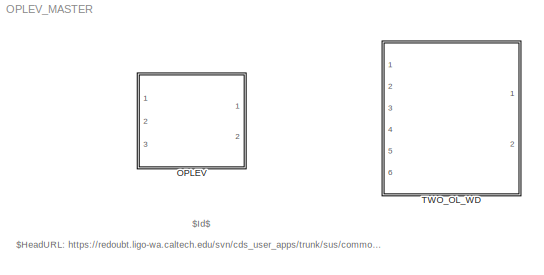
MODEL OPLEV_MASTER
KIND library
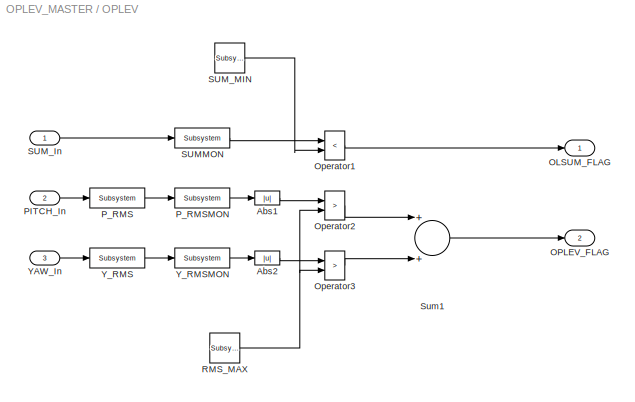
BLOCK [SubSystem] OPLEV
  Ports = [3, 2]
  RequestExecContextInheritance = off
  SID = 1
  Variant = off
BLOCK [Abs] OPLEV/Abs1
  SID = 5
  SaturateOnIntegerOverflow = off
BLOCK [Abs] OPLEV/Abs2
  SID = 6
  SaturateOnIntegerOverflow = off
BLOCK [Outport] OPLEV/OLSUM_FLAG
  IconDisplay = Port number
  SID = 18
BLOCK [Outport] OPLEV/OPLEV_FLAG
  IconDisplay = Port number
  Port = 2
  SID = 19
BLOCK [RelationalOperator] OPLEV/Operator1
  InputSameDT = off
  Operator = <
  OutDataTypeStr = boolean
  Ports = [2, 1]
  SID = 7
BLOCK [RelationalOperator] OPLEV/Operator2
  InputSameDT = off
  Operator = >
  OutDataTypeStr = boolean
  Ports = [2, 1]
  SID = 8
  ZeroCross = off
BLOCK [RelationalOperator] OPLEV/Operator3
  InputSameDT = off
  Operator = >
  OutDataTypeStr = boolean
  Ports = [2, 1]
  SID = 9
BLOCK [Inport] OPLEV/PITCH_In
  IconDisplay = Port number
  Port = 2
  SID = 3
BLOCK [Reference] OPLEV/P_RMS  REF=cdsRms/Subsystem
  AttributesFormatString = %<Tag>
  Description = Purpose:                                   \nCalculate an RMS based on the input signal.
  Ports = [1, 1]
  SID = 10
  SourceBlock = cdsRms/Subsystem
  SourceType = SubSystem
  Tag = cdsRms
BLOCK [Reference] OPLEV/P_RMSMON  REF=cdsEpicsOut/Subsystem
  AttributesFormatString = %<Tag>
  Description = Purpose:                                          \nOutput a FE signal to an EPICS channel.           \n                                                  \nOperation:                                        \nTakes input value and passes it to EPICS record.  \n                                                  \nUsage:                                            \nName the part with the desired EPICS...<+14ch>  <repeated x9 — deduplicated; at blocks: P_RMSMON, SUMMON, Y_RMSMON, H_RMSMON, V_RMSMON>
  Ports = [1, 1]
  SID = 11
  SourceBlock = cdsEpicsOut/Subsystem
  SourceType = SubSystem
  Tag = cdsEpicsOutput
BLOCK [Reference] OPLEV/RMS_MAX  REF=cdsEpicsIn/Subsystem
  AttributesFormatString = %<Tag>
  Description = Purpose:                                                                              \nCreate an EPICS input channel connection to the FE realtime controls.                 \n                                                                                      \nOperation:                                                                            \nOutputs value from an EPICS ai record. Value is ...<+266ch>  <repeated x6 — deduplicated; at blocks: RMS_MAX, SUM_MIN>
  Ports = [0, 1]
  SID = 12
  SourceBlock = cdsEpicsIn/Subsystem
  SourceType = SubSystem
  Tag = cdsEpicsIn
BLOCK [Reference] OPLEV/SUMMON  REF=cdsEpicsOut/Subsystem
  AttributesFormatString = %<Tag>
  Ports = [1, 1]
  SID = 13
  SourceBlock = cdsEpicsOut/Subsystem
  SourceType = SubSystem
  Tag = cdsEpicsOutput
BLOCK [Inport] OPLEV/SUM_In
  IconDisplay = Port number
  SID = 2
BLOCK [Reference] OPLEV/SUM_MIN  REF=cdsEpicsIn/Subsystem
  AttributesFormatString = %<Tag>
  Ports = [0, 1]
  SID = 14
  SourceBlock = cdsEpicsIn/Subsystem
  SourceType = SubSystem
  Tag = cdsEpicsIn
BLOCK [Sum] OPLEV/Sum1
  InputSameDT = off
  OutDataTypeStr = Inherit: Inherit via internal rule
  Ports = [2, 1]
  SID = 15
  SaturateOnIntegerOverflow = off
BLOCK [Inport] OPLEV/YAW_In
  IconDisplay = Port number
  Port = 3
  SID = 4
BLOCK [Reference] OPLEV/Y_RMS  REF=cdsRms/Subsystem
  AttributesFormatString = %<Tag>
  Description = Purpose:                                   \nCalculate an RMS based on the input signal.
  Ports = [1, 1]
  SID = 16
  SourceBlock = cdsRms/Subsystem
  SourceType = SubSystem
  Tag = cdsRms
BLOCK [Reference] OPLEV/Y_RMSMON  REF=cdsEpicsOut/Subsystem
  AttributesFormatString = %<Tag>
  Ports = [1, 1]
  SID = 17
  SourceBlock = cdsEpicsOut/Subsystem
  SourceType = SubSystem
  Tag = cdsEpicsOutput
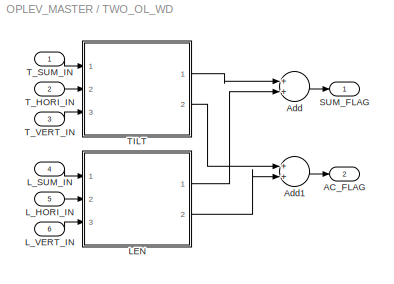
BLOCK [SubSystem] TWO_OL_WD
  Ports = [6, 2]
  RequestExecContextInheritance = off
  SID = 83
  Variant = off
BLOCK [Outport] TWO_OL_WD/AC_FLAG
  IconDisplay = Port number
  Port = 2
  SID = 91
BLOCK [Sum] TWO_OL_WD/Add
  InputSameDT = off
  OutDataTypeStr = Inherit: Inherit via internal rule
  Ports = [2, 1]
  SID = 81
  SaturateOnIntegerOverflow = off
BLOCK [Sum] TWO_OL_WD/Add1
  InputSameDT = off
  OutDataTypeStr = Inherit: Inherit via internal rule
  Ports = [2, 1]
  SID = 82
  SaturateOnIntegerOverflow = off
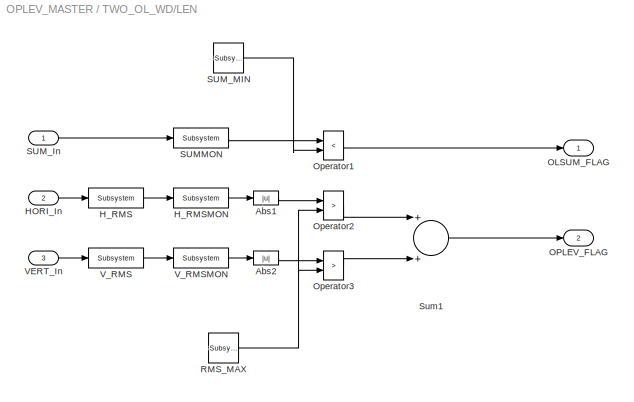
BLOCK [SubSystem] TWO_OL_WD/LEN
  Ports = [3, 2]
  RequestExecContextInheritance = off
  SID = 62
  Variant = off
BLOCK [Abs] TWO_OL_WD/LEN/Abs1
  SID = 66
  SaturateOnIntegerOverflow = off
BLOCK [Abs] TWO_OL_WD/LEN/Abs2
  SID = 67
  SaturateOnIntegerOverflow = off
BLOCK [Inport] TWO_OL_WD/LEN/HORI_In
  IconDisplay = Port number
  Port = 2
  SID = 64
BLOCK [Reference] TWO_OL_WD/LEN/H_RMS  REF=cdsRms/Subsystem
  AttributesFormatString = %<Tag>
  Description = Purpose:                                   \nCalculate an RMS based on the input signal.
  Ports = [1, 1]
  SID = 68
  SourceBlock = cdsRms/Subsystem
  SourceType = SubSystem
  Tag = cdsRms
BLOCK [Reference] TWO_OL_WD/LEN/H_RMSMON  REF=cdsEpicsOut/Subsystem
  AttributesFormatString = %<Tag>
  Ports = [1, 1]
  SID = 69
  SourceBlock = cdsEpicsOut/Subsystem
  SourceType = SubSystem
  Tag = cdsEpicsOutput
BLOCK [Outport] TWO_OL_WD/LEN/OLSUM_FLAG
  IconDisplay = Port number
  SID = 79
BLOCK [Outport] TWO_OL_WD/LEN/OPLEV_FLAG
  IconDisplay = Port number
  Port = 2
  SID = 80
BLOCK [RelationalOperator] TWO_OL_WD/LEN/Operator1
  InputSameDT = off
  Operator = <
  OutDataTypeStr = boolean
  Ports = [2, 1]
  SID = 70
BLOCK [RelationalOperator] TWO_OL_WD/LEN/Operator2
  InputSameDT = off
  Operator = >
  OutDataTypeStr = boolean
  Ports = [2, 1]
  SID = 71
  ZeroCross = off
BLOCK [RelationalOperator] TWO_OL_WD/LEN/Operator3
  InputSameDT = off
  Operator = >
  OutDataTypeStr = boolean
  Ports = [2, 1]
  SID = 72
BLOCK [Reference] TWO_OL_WD/LEN/RMS_MAX  REF=cdsEpicsIn/Subsystem
  AttributesFormatString = %<Tag>
  Ports = [0, 1]
  SID = 73
  SourceBlock = cdsEpicsIn/Subsystem
  SourceType = SubSystem
  Tag = cdsEpicsIn
BLOCK [Reference] TWO_OL_WD/LEN/SUMMON  REF=cdsEpicsOut/Subsystem
  AttributesFormatString = %<Tag>
  Ports = [1, 1]
  SID = 74
  SourceBlock = cdsEpicsOut/Subsystem
  SourceType = SubSystem
  Tag = cdsEpicsOutput
BLOCK [Inport] TWO_OL_WD/LEN/SUM_In
  IconDisplay = Port number
  SID = 63
BLOCK [Reference] TWO_OL_WD/LEN/SUM_MIN  REF=cdsEpicsIn/Subsystem
  AttributesFormatString = %<Tag>
  Ports = [0, 1]
  SID = 75
  SourceBlock = cdsEpicsIn/Subsystem
  SourceType = SubSystem
  Tag = cdsEpicsIn
BLOCK [Sum] TWO_OL_WD/LEN/Sum1
  InputSameDT = off
  OutDataTypeStr = Inherit: Inherit via internal rule
  Ports = [2, 1]
  SID = 76
  SaturateOnIntegerOverflow = off
BLOCK [Inport] TWO_OL_WD/LEN/VERT_In
  IconDisplay = Port number
  Port = 3
  SID = 65
BLOCK [Reference] TWO_OL_WD/LEN/V_RMS  REF=cdsRms/Subsystem
  AttributesFormatString = %<Tag>
  Description = Purpose:                                   \nCalculate an RMS based on the input signal.
  Ports = [1, 1]
  SID = 77
  SourceBlock = cdsRms/Subsystem
  SourceType = SubSystem
  Tag = cdsRms
BLOCK [Reference] TWO_OL_WD/LEN/V_RMSMON  REF=cdsEpicsOut/Subsystem
  AttributesFormatString = %<Tag>
  Ports = [1, 1]
  SID = 78
  SourceBlock = cdsEpicsOut/Subsystem
  SourceType = SubSystem
  Tag = cdsEpicsOutput
BLOCK [Inport] TWO_OL_WD/L_HORI_IN
  IconDisplay = Port number
  Port = 5
  SID = 88
BLOCK [Inport] TWO_OL_WD/L_SUM_IN
  IconDisplay = Port number
  Port = 4
  SID = 87
BLOCK [Inport] TWO_OL_WD/L_VERT_IN
  IconDisplay = Port number
  Port = 6
  SID = 89
BLOCK [Outport] TWO_OL_WD/SUM_FLAG
  IconDisplay = Port number
  SID = 90
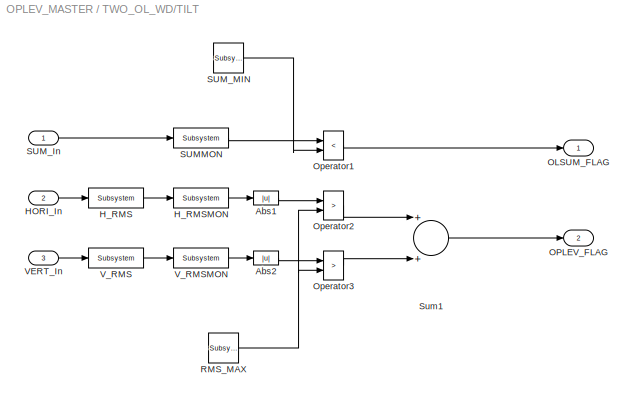
BLOCK [SubSystem] TWO_OL_WD/TILT
  Ports = [3, 2]
  RequestExecContextInheritance = off
  SID = 41
  Variant = off
BLOCK [Abs] TWO_OL_WD/TILT/Abs1
  SID = 45
  SaturateOnIntegerOverflow = off
BLOCK [Abs] TWO_OL_WD/TILT/Abs2
  SID = 46
  SaturateOnIntegerOverflow = off
BLOCK [Inport] TWO_OL_WD/TILT/HORI_In
  IconDisplay = Port number
  Port = 2
  SID = 43
BLOCK [Reference] TWO_OL_WD/TILT/H_RMS  REF=cdsRms/Subsystem
  AttributesFormatString = %<Tag>
  Description = Purpose:                                   \nCalculate an RMS based on the input signal.
  Ports = [1, 1]
  SID = 50
  SourceBlock = cdsRms/Subsystem
  SourceType = SubSystem
  Tag = cdsRms
BLOCK [Reference] TWO_OL_WD/TILT/H_RMSMON  REF=cdsEpicsOut/Subsystem
  AttributesFormatString = %<Tag>
  Ports = [1, 1]
  SID = 51
  SourceBlock = cdsEpicsOut/Subsystem
  SourceType = SubSystem
  Tag = cdsEpicsOutput
BLOCK [Outport] TWO_OL_WD/TILT/OLSUM_FLAG
  IconDisplay = Port number
  SID = 58
BLOCK [Outport] TWO_OL_WD/TILT/OPLEV_FLAG
  IconDisplay = Port number
  Port = 2
  SID = 59
BLOCK [RelationalOperator] TWO_OL_WD/TILT/Operator1
  InputSameDT = off
  Operator = <
  OutDataTypeStr = boolean
  Ports = [2, 1]
  SID = 47
BLOCK [RelationalOperator] TWO_OL_WD/TILT/Operator2
  InputSameDT = off
  Operator = >
  OutDataTypeStr = boolean
  Ports = [2, 1]
  SID = 48
  ZeroCross = off
BLOCK [RelationalOperator] TWO_OL_WD/TILT/Operator3
  InputSameDT = off
  Operator = >
  OutDataTypeStr = boolean
  Ports = [2, 1]
  SID = 49
BLOCK [Reference] TWO_OL_WD/TILT/RMS_MAX  REF=cdsEpicsIn/Subsystem
  AttributesFormatString = %<Tag>
  Ports = [0, 1]
  SID = 52
  SourceBlock = cdsEpicsIn/Subsystem
  SourceType = SubSystem
  Tag = cdsEpicsIn
BLOCK [Reference] TWO_OL_WD/TILT/SUMMON  REF=cdsEpicsOut/Subsystem
  AttributesFormatString = %<Tag>
  Ports = [1, 1]
  SID = 53
  SourceBlock = cdsEpicsOut/Subsystem
  SourceType = SubSystem
  Tag = cdsEpicsOutput
BLOCK [Inport] TWO_OL_WD/TILT/SUM_In
  IconDisplay = Port number
  SID = 42
BLOCK [Reference] TWO_OL_WD/TILT/SUM_MIN  REF=cdsEpicsIn/Subsystem
  AttributesFormatString = %<Tag>
  Ports = [0, 1]
  SID = 54
  SourceBlock = cdsEpicsIn/Subsystem
  SourceType = SubSystem
  Tag = cdsEpicsIn
BLOCK [Sum] TWO_OL_WD/TILT/Sum1
  InputSameDT = off
  OutDataTypeStr = Inherit: Inherit via internal rule
  Ports = [2, 1]
  SID = 55
  SaturateOnIntegerOverflow = off
BLOCK [Inport] TWO_OL_WD/TILT/VERT_In
  IconDisplay = Port number
  Port = 3
  SID = 44
BLOCK [Reference] TWO_OL_WD/TILT/V_RMS  REF=cdsRms/Subsystem
  AttributesFormatString = %<Tag>
  Description = Purpose:                                   \nCalculate an RMS based on the input signal.
  Ports = [1, 1]
  SID = 56
  SourceBlock = cdsRms/Subsystem
  SourceType = SubSystem
  Tag = cdsRms
BLOCK [Reference] TWO_OL_WD/TILT/V_RMSMON  REF=cdsEpicsOut/Subsystem
  AttributesFormatString = %<Tag>
  Ports = [1, 1]
  SID = 57
  SourceBlock = cdsEpicsOut/Subsystem
  SourceType = SubSystem
  Tag = cdsEpicsOutput
BLOCK [Inport] TWO_OL_WD/T_HORI_IN
  IconDisplay = Port number
  Port = 2
  SID = 85
BLOCK [Inport] TWO_OL_WD/T_SUM_IN
  IconDisplay = Port number
  SID = 84
BLOCK [Inport] TWO_OL_WD/T_VERT_IN
  IconDisplay = Port number
  Port = 3
  SID = 86
ANNOTATION (root): $HeadURL: https://redoubt.ligo-wa.caltech.edu/svn/cds_user_apps/trunk/sus/common/models/OPLEV_MASTER.mdl $
ANNOTATION (root): $Id$
LINE OPLEV/Abs1:1 -> OPLEV/Operator2:1
LINE OPLEV/Abs2:1 -> OPLEV/Operator3:1
LINE OPLEV/Operator1:1 -> OPLEV/OLSUM_FLAG:1
LINE OPLEV/Operator2:1 -> OPLEV/Sum1:1
LINE OPLEV/Operator3:1 -> OPLEV/Sum1:2
LINE OPLEV/PITCH_In:1 -> OPLEV/P_RMS:1
LINE OPLEV/P_RMS:1 -> OPLEV/P_RMSMON:1
LINE OPLEV/P_RMSMON:1 -> OPLEV/Abs1:1
NET OPLEV/RMS_MAX:1 -> OPLEV/Operator2:2, OPLEV/Operator3:2
LINE OPLEV/SUMMON:1 -> OPLEV/Operator1:1
LINE OPLEV/SUM_In:1 -> OPLEV/SUMMON:1
LINE OPLEV/SUM_MIN:1 -> OPLEV/Operator1:2
LINE OPLEV/Sum1:1 -> OPLEV/OPLEV_FLAG:1
LINE OPLEV/YAW_In:1 -> OPLEV/Y_RMS:1
LINE OPLEV/Y_RMS:1 -> OPLEV/Y_RMSMON:1
LINE OPLEV/Y_RMSMON:1 -> OPLEV/Abs2:1
LINE TWO_OL_WD/Add1:1 -> TWO_OL_WD/AC_FLAG:1
LINE TWO_OL_WD/Add:1 -> TWO_OL_WD/SUM_FLAG:1
LINE TWO_OL_WD/LEN/Abs1:1 -> TWO_OL_WD/LEN/Operator2:1
LINE TWO_OL_WD/LEN/Abs2:1 -> TWO_OL_WD/LEN/Operator3:1
LINE TWO_OL_WD/LEN/HORI_In:1 -> TWO_OL_WD/LEN/H_RMS:1
LINE TWO_OL_WD/LEN/H_RMS:1 -> TWO_OL_WD/LEN/H_RMSMON:1
LINE TWO_OL_WD/LEN/H_RMSMON:1 -> TWO_OL_WD/LEN/Abs1:1
LINE TWO_OL_WD/LEN/Operator1:1 -> TWO_OL_WD/LEN/OLSUM_FLAG:1
LINE TWO_OL_WD/LEN/Operator2:1 -> TWO_OL_WD/LEN/Sum1:1
LINE TWO_OL_WD/LEN/Operator3:1 -> TWO_OL_WD/LEN/Sum1:2
NET TWO_OL_WD/LEN/RMS_MAX:1 -> TWO_OL_WD/LEN/Operator2:2, TWO_OL_WD/LEN/Operator3:2
LINE TWO_OL_WD/LEN/SUMMON:1 -> TWO_OL_WD/LEN/Operator1:1
LINE TWO_OL_WD/LEN/SUM_In:1 -> TWO_OL_WD/LEN/SUMMON:1
LINE TWO_OL_WD/LEN/SUM_MIN:1 -> TWO_OL_WD/LEN/Operator1:2
LINE TWO_OL_WD/LEN/Sum1:1 -> TWO_OL_WD/LEN/OPLEV_FLAG:1
LINE TWO_OL_WD/LEN/VERT_In:1 -> TWO_OL_WD/LEN/V_RMS:1
LINE TWO_OL_WD/LEN/V_RMS:1 -> TWO_OL_WD/LEN/V_RMSMON:1
LINE TWO_OL_WD/LEN/V_RMSMON:1 -> TWO_OL_WD/LEN/Abs2:1
LINE TWO_OL_WD/LEN:1 -> TWO_OL_WD/Add:2
LINE TWO_OL_WD/LEN:2 -> TWO_OL_WD/Add1:2
LINE TWO_OL_WD/L_HORI_IN:1 -> TWO_OL_WD/LEN:2
LINE TWO_OL_WD/L_SUM_IN:1 -> TWO_OL_WD/LEN:1
LINE TWO_OL_WD/L_VERT_IN:1 -> TWO_OL_WD/LEN:3
LINE TWO_OL_WD/TILT/Abs1:1 -> TWO_OL_WD/TILT/Operator2:1
LINE TWO_OL_WD/TILT/Abs2:1 -> TWO_OL_WD/TILT/Operator3:1
LINE TWO_OL_WD/TILT/HORI_In:1 -> TWO_OL_WD/TILT/H_RMS:1
LINE TWO_OL_WD/TILT/H_RMS:1 -> TWO_OL_WD/TILT/H_RMSMON:1
LINE TWO_OL_WD/TILT/H_RMSMON:1 -> TWO_OL_WD/TILT/Abs1:1
LINE TWO_OL_WD/TILT/Operator1:1 -> TWO_OL_WD/TILT/OLSUM_FLAG:1
LINE TWO_OL_WD/TILT/Operator2:1 -> TWO_OL_WD/TILT/Sum1:1
LINE TWO_OL_WD/TILT/Operator3:1 -> TWO_OL_WD/TILT/Sum1:2
NET TWO_OL_WD/TILT/RMS_MAX:1 -> TWO_OL_WD/TILT/Operator2:2, TWO_OL_WD/TILT/Operator3:2
LINE TWO_OL_WD/TILT/SUMMON:1 -> TWO_OL_WD/TILT/Operator1:1
LINE TWO_OL_WD/TILT/SUM_In:1 -> TWO_OL_WD/TILT/SUMMON:1
LINE TWO_OL_WD/TILT/SUM_MIN:1 -> TWO_OL_WD/TILT/Operator1:2
LINE TWO_OL_WD/TILT/Sum1:1 -> TWO_OL_WD/TILT/OPLEV_FLAG:1
LINE TWO_OL_WD/TILT/VERT_In:1 -> TWO_OL_WD/TILT/V_RMS:1
LINE TWO_OL_WD/TILT/V_RMS:1 -> TWO_OL_WD/TILT/V_RMSMON:1
LINE TWO_OL_WD/TILT/V_RMSMON:1 -> TWO_OL_WD/TILT/Abs2:1
LINE TWO_OL_WD/TILT:1 -> TWO_OL_WD/Add:1
LINE TWO_OL_WD/TILT:2 -> TWO_OL_WD/Add1:1
LINE TWO_OL_WD/T_HORI_IN:1 -> TWO_OL_WD/TILT:2
LINE TWO_OL_WD/T_SUM_IN:1 -> TWO_OL_WD/TILT:1
LINE TWO_OL_WD/T_VERT_IN:1 -> TWO_OL_WD/TILT:3
note: NET lines group one-source signal fan-out (src -> all destinations, sorted); 1:1 wires keep LINE
